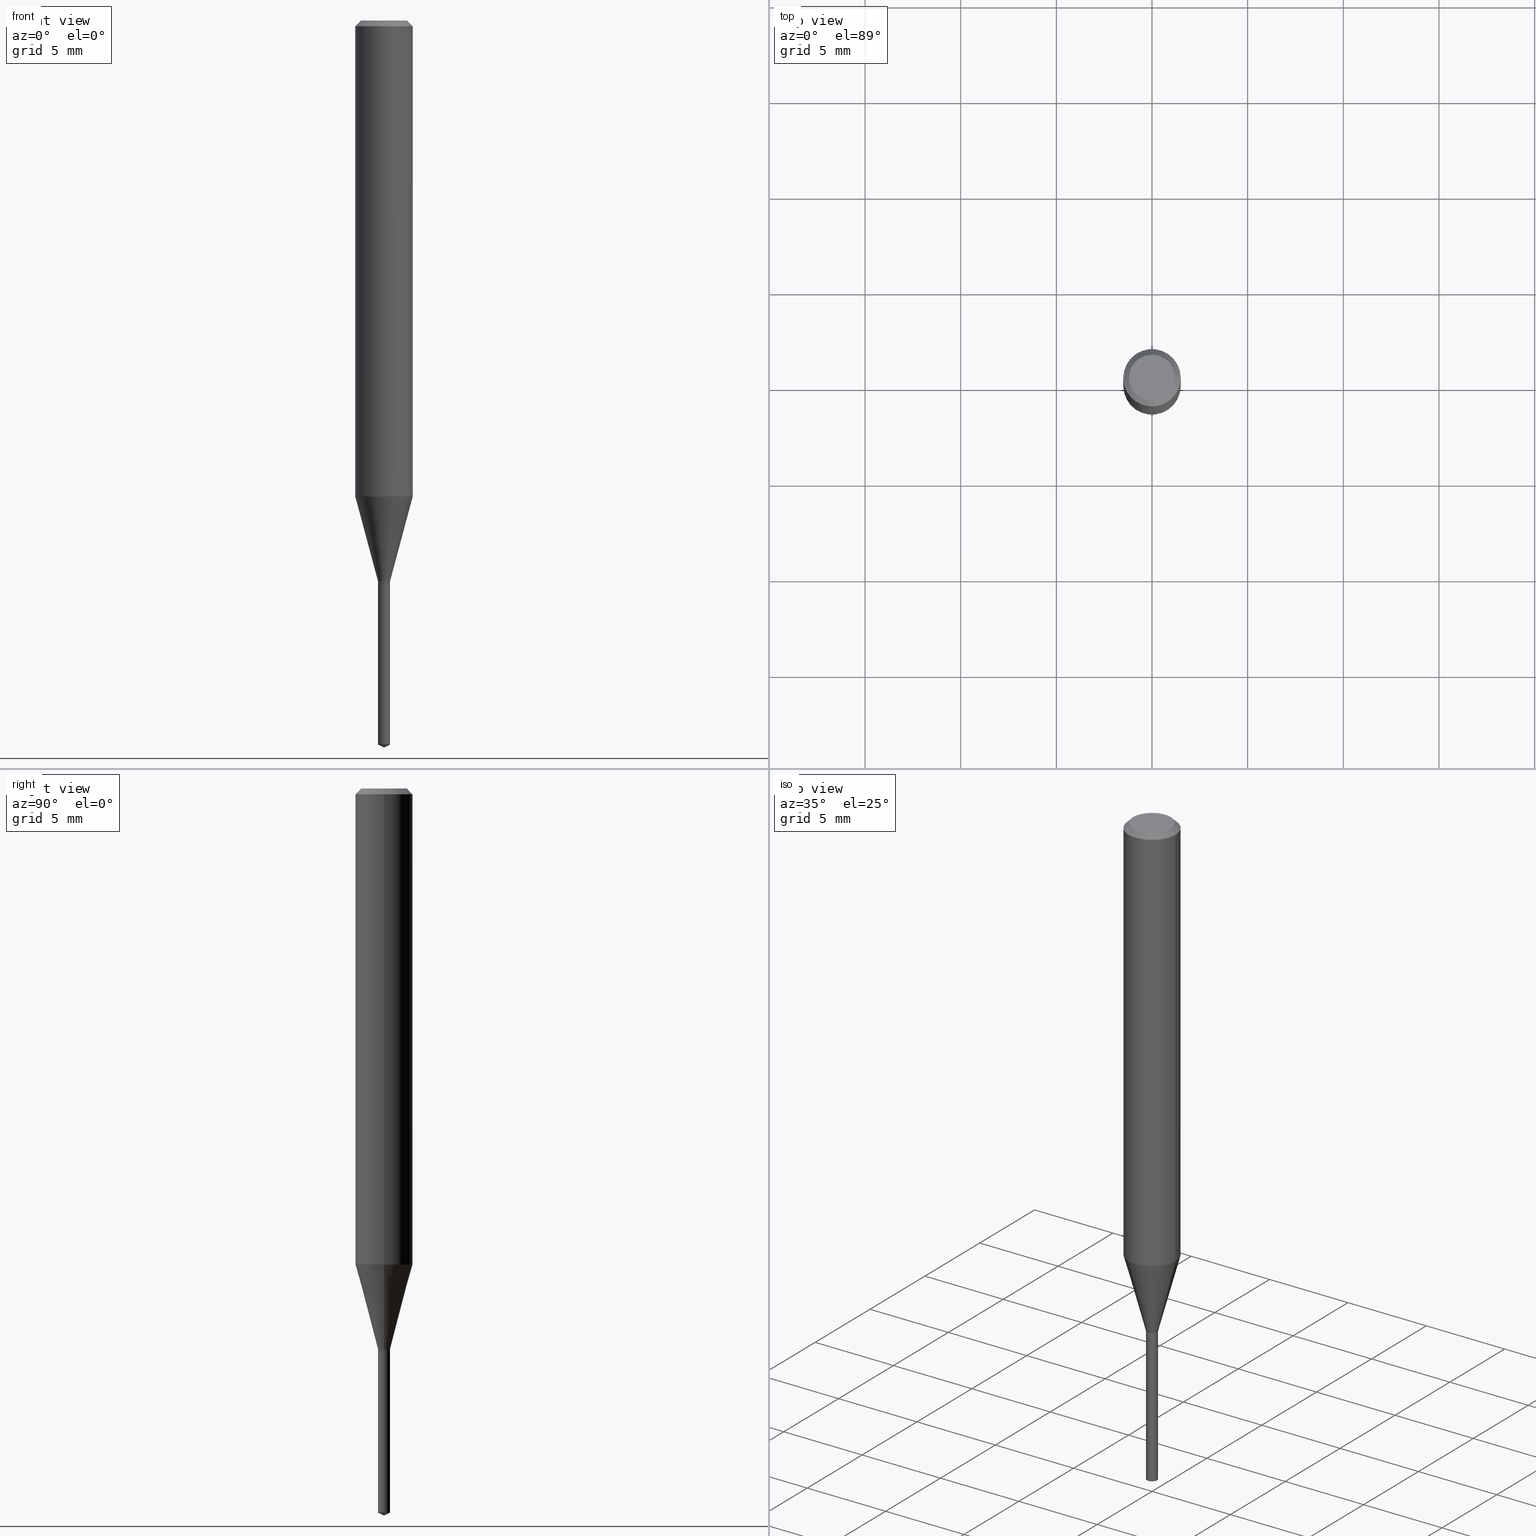
[diagram: canonical four-view strip — front | top / right | iso, engineering-drawing reading convention]
A machine part, canonical four-view strip (front | top / right | iso — engineering-drawing reading convention). The complete STEP part file that produces these views, byte-faithful:
ISO-10303-21;
HEADER;
FILE_DESCRIPTION (( 'STEP AP203' ),
    '1' );
FILE_NAME ('08287.STEP',
    '2024-04-24T14:06:48',
    ( '' ),
    ( '' ),
    'SwSTEP 2.0',
    'SolidWorks 2023',
    '' );
FILE_SCHEMA (( 'CONFIG_CONTROL_DESIGN' ));
ENDSEC;

DATA;
#1 = DIRECTION ( 'NONE',  ( 0.7071067811865454633, -7.319954787623248157E-15, -0.7071067811865495711 ) ) ;
#2 = DIRECTION ( 'NONE',  ( -2.445468806185136597E-29, 3.491481338843145583E-15, 1.000000000000000000 ) ) ;
#3 = ADVANCED_FACE ( 'NONE', ( #368 ), #137, .T. ) ;
#4 = DIRECTION ( 'NONE',  ( 1.000000000000000000, -6.982962677686265922E-15, 4.876176775795935793E-29 ) ) ;
#5 = CIRCLE ( 'NONE', #481, 0.01239999999999999956 ) ;
#6 = CARTESIAN_POINT ( 'NONE',  ( 8.810729923428890477E-17, 0.01239999999999595766, -1.157499999999999973 ) ) ;
#7 = DIRECTION ( 'NONE',  ( -2.445468806185136597E-29, 3.491481338843145583E-15, 1.000000000000000000 ) ) ;
#8 = DIRECTION ( 'NONE',  ( -6.982962677686265922E-15, -1.000000000000000000, 0.000000000000000000 ) ) ;
#9 = EDGE_CURVE ( 'NONE', #418, #61, #223, .T. ) ;
#10 = COORDINATED_UNIVERSAL_TIME_OFFSET ( 5, 0, .BEHIND. ) ;
#11 = CC_DESIGN_APPROVAL ( #303, ( #489 ) ) ;
#12 = CARTESIAN_POINT ( 'NONE',  ( 0.01239999999999999956, -4.126232646244828340E-15, -1.156999999999999806 ) ) ;
#13 = ORIENTED_EDGE ( 'NONE', *, *, #350, .T. ) ;
#14 = PERSON_AND_ORGANIZATION_ROLE ( 'design_supplier' ) ;
#15 = DIRECTION ( 'NONE',  ( -2.443412120811339220E-29, 3.494426629357685076E-15, 1.000000000000000000 ) ) ;
#16 = EDGE_CURVE ( 'NONE', #54, #363, #247, .T. ) ;
#17 = CARTESIAN_POINT ( 'NONE',  ( 2.829407408756202832E-29, -4.039643909041518608E-15, -1.156999999999999806 ) ) ;
#18 = EDGE_LOOP ( 'NONE', ( #204, #430, #426, #275 ) ) ;
#19 = MANIFOLD_SOLID_BREP ( 'Body-Move/Copy2[2]', #48 ) ;
#20 = EDGE_LOOP ( 'NONE', ( #187, #200, #219, #121 ) ) ;
#21 = EDGE_LOOP ( 'NONE', ( #119, #131, #27 ) ) ;
#22 =( NAMED_UNIT ( * ) SI_UNIT ( $, .STERADIAN. ) SOLID_ANGLE_UNIT ( ) );
#23 = CARTESIAN_POINT ( 'NONE',  ( 0.04724000000000000421, -3.852183633974369345E-16, -3.380025165621689721E-19 ) ) ;
#24 = EDGE_CURVE ( 'NONE', #212, #471, #254, .T. ) ;
#25 =( GEOMETRIC_REPRESENTATION_CONTEXT ( 3 ) GLOBAL_UNCERTAINTY_ASSIGNED_CONTEXT ( ( #337 ) ) GLOBAL_UNIT_ASSIGNED_CONTEXT ( ( #105, #329, #22 ) ) REPRESENTATION_CONTEXT ( 'NONE', 'WORKASPACE' ) );
#26 = APPROVAL_ROLE ( '' ) ;
#27 = ORIENTED_EDGE ( 'NONE', *, *, #396, .F. ) ;
#28 = VERTEX_POINT ( 'NONE', #102 ) ;
#29 = EDGE_CURVE ( 'NONE', #236, #83, #248, .T. ) ;
#30 = FACE_OUTER_BOUND ( 'NONE', #371, .T. ) ;
#31 = LOCAL_TIME ( 10, 6, 48.00000000000000000, #10 ) ;
#32 = CARTESIAN_POINT ( 'NONE',  ( 2.830630143159295633E-29, -4.041389649710940900E-15, -1.157499999999999973 ) ) ;
#33 = CONICAL_SURFACE ( 'NONE', #184, 0.01239999999999999956, 0.2617993877991500740 ) ;
#34 = APPROVAL_PERSON_ORGANIZATION ( #237, #454, #202 ) ;
#35 = ORIENTED_EDGE ( 'NONE', *, *, #252, .F. ) ;
#36 = DIRECTION ( 'NONE',  ( -2.445468806185136597E-29, 3.491481338843145583E-15, 1.000000000000000000 ) ) ;
#37 = DIRECTION ( 'NONE',  ( -6.982962677686265922E-15, -1.000000000000000000, 0.000000000000000000 ) ) ;
#38 = DIRECTION ( 'NONE',  ( 1.000000000000000000, -6.982962677686277755E-15, 0.000000000000000000 ) ) ;
#39 = VECTOR ( 'NONE', #349, 39.37007874015747433 ) ;
#40 = DIRECTION ( 'NONE',  ( -6.982962677686265922E-15, -1.000000000000000000, 0.000000000000000000 ) ) ;
#41 = CC_DESIGN_PERSON_AND_ORGANIZATION_ASSIGNMENT ( #477, #332, ( #294 ) ) ;
#42 = CYLINDRICAL_SURFACE ( 'NONE', #357, 0.05905000000000006077 ) ;
#43 = PERSON_AND_ORGANIZATION ( #87, #249 ) ;
#44 = DIRECTION ( 'NONE',  ( -6.982962677686265922E-15, -1.000000000000000000, 0.000000000000000000 ) ) ;
#45 = ORIENTED_EDGE ( 'NONE', *, *, #401, .F. ) ;
#46 = CIRCLE ( 'NONE', #101, 0.01239999999999999956 ) ;
#47 = APPROVAL_ROLE ( '' ) ;
#48 = CLOSED_SHELL ( 'NONE', ( #439, #73, #465, #258, #152, #415, #264, #344, #125, #207, #161, #3 ) ) ;
#49 = LINE ( 'NONE', #86, #380 ) ;
#50 = CC_DESIGN_DATE_AND_TIME_ASSIGNMENT ( #278, #393, ( #292 ) ) ;
#51 = DATE_AND_TIME ( #124, #347 ) ;
#52 = CARTESIAN_POINT ( 'NONE',  ( -9.253935810373158253E-28, 1.323512490431036956E-13, 37.87397874015748300 ) ) ;
#53 = ORIENTED_EDGE ( 'NONE', *, *, #472, .T. ) ;
#54 = VERTEX_POINT ( 'NONE', #488 ) ;
#55 = ORIENTED_EDGE ( 'NONE', *, *, #350, .F. ) ;
#56 = LINE ( 'NONE', #367, #98 ) ;
#57 = AXIS2_PLACEMENT_3D ( 'NONE', #305, #385, #38 ) ;
#58 = CARTESIAN_POINT ( 'NONE',  ( 0.05905000000000011628, -3.832947619625843003E-15, -0.9796998298269117278 ) ) ;
#59 = EDGE_CURVE ( 'NONE', #81, #220, #179, .T. ) ;
#60 = DIRECTION ( 'NONE',  ( 1.000000000000000000, 0.000000000000000000, 0.000000000000000000 ) ) ;
#61 = VERTEX_POINT ( 'NONE', #23 ) ;
#62 =( LENGTH_UNIT ( ) NAMED_UNIT ( * ) SI_UNIT ( $, .METRE. ) );
#63 = ORIENTED_EDGE ( 'NONE', *, *, #197, .F. ) ;
#64 = CC_DESIGN_APPROVAL ( #454, ( #447 ) ) ;
#65 = ORIENTED_EDGE ( 'NONE', *, *, #24, .T. ) ;
#66 = CIRCLE ( 'NONE', #158, 0.05905000000000011628 ) ;
#67 = DIRECTION ( 'NONE',  ( -2.445468806185136877E-29, 3.491481338843145188E-15, 1.000000000000000000 ) ) ;
#68 = DIRECTION ( 'NONE',  ( -2.445468806185136877E-29, 3.491481338843145188E-15, 1.000000000000000000 ) ) ;
#69 = ORIENTED_EDGE ( 'NONE', *, *, #386, .F. ) ;
#70 = CARTESIAN_POINT ( 'NONE',  ( 8.265746106709734507E-48, -1.180129479067563789E-33, -3.380025165646692144E-19 ) ) ;
#71 = CIRCLE ( 'NONE', #387, 0.04724000000000000421 ) ;
#72 = CC_DESIGN_SECURITY_CLASSIFICATION ( #292, ( #447 ) ) ;
#73 = ADVANCED_FACE ( 'NONE', ( #30 ), #437, .T. ) ;
#74 = DIRECTION ( 'NONE',  ( -2.438088387897960049E-29, 3.491481338843145188E-15, 1.000000000000000000 ) ) ;
#75 = CARTESIAN_POINT ( 'NONE',  ( 4.132873053354867254E-48, -5.900647395337818946E-34, -1.690012582823346072E-19 ) ) ;
#76 = DIRECTION ( 'NONE',  ( -2.445468806185136597E-29, 3.491481338843145583E-15, 1.000000000000000000 ) ) ;
#77 = EDGE_CURVE ( 'NONE', #480, #297, #291, .T. ) ;
#78 = CONICAL_SURFACE ( 'NONE', #365, 84.42940631927352513, 1.134464013796312232 ) ;
#79 = CARTESIAN_POINT ( 'NONE',  ( 0.01239999999999999956, -4.115059905960530718E-15, -1.153799999999999937 ) ) ;
#80 = ORIENTED_EDGE ( 'NONE', *, *, #111, .F. ) ;
#81 = VERTEX_POINT ( 'NONE', #58 ) ;
#82 = DIRECTION ( 'NONE',  ( -2.443412120811339220E-29, 3.494426629357685076E-15, 1.000000000000000000 ) ) ;
#83 = VERTEX_POINT ( 'NONE', #106 ) ;
#84 = ORIENTED_EDGE ( 'NONE', *, *, #396, .T. ) ;
#85 = CC_DESIGN_PERSON_AND_ORGANIZATION_ASSIGNMENT ( #469, #14, ( #447 ) ) ;
#86 = CARTESIAN_POINT ( 'NONE',  ( 3.655588873945844653E-29, -5.228011680182032039E-15, -1.496099999999999985 ) ) ;
#87 = PERSON ( 'UNSPECIFIED', 'UNSPECIFIED', 'UNSPECIFIED', ('UNSPECIFIED'), ('UNSPECIFIED'), ('UNSPECIFIED') ) ;
#88 = ORIENTED_EDGE ( 'NONE', *, *, #197, .T. ) ;
#89 = APPROVAL_STATUS ( 'not_yet_approved' ) ;
#90 = VECTOR ( 'NONE', #285, 39.37007874015747433 ) ;
#91 = CARTESIAN_POINT ( 'NONE',  ( 2.821581908576410135E-29, -4.028471168757220985E-15, -1.153799999999999937 ) ) ;
#92 = ORIENTED_EDGE ( 'NONE', *, *, #221, .T. ) ;
#93 = DATE_TIME_ROLE ( 'creation_date' ) ;
#94 = CARTESIAN_POINT ( 'NONE',  ( -0.01239999999999999956, 8.810729923425241995E-17, -6.099479511916082972E-31 ) ) ;
#95 = ORIENTED_EDGE ( 'NONE', *, *, #116, .F. ) ;
#96 = ADVANCED_BREP_SHAPE_REPRESENTATION ( '08287', ( #181, #19, #420 ), #25 ) ;
#97 = DIRECTION ( 'NONE',  ( 1.000000000000000000, -6.982962677686274599E-15, 0.000000000000000000 ) ) ;
#98 = VECTOR ( 'NONE', #253, 39.37007874015748143 ) ;
#99 = CIRCLE ( 'NONE', #118, 0.05905000000000011628 ) ;
#100 = FACE_OUTER_BOUND ( 'NONE', #167, .T. ) ;
#101 = AXIS2_PLACEMENT_3D ( 'NONE', #467, #15, #8 ) ;
#102 = CARTESIAN_POINT ( 'NONE',  ( -8.658873720328138277E-17, -0.01240000000000404147, -1.157499999999999973 ) ) ;
#103 = DIRECTION ( 'NONE',  ( 1.000000000000000000, -6.982962677686266711E-15, 4.876176775795935793E-29 ) ) ;
#104 = EDGE_LOOP ( 'NONE', ( #282, #209, #53, #211 ) ) ;
#105 =( CONVERSION_BASED_UNIT ( 'INCH', #250 ) LENGTH_UNIT ( ) NAMED_UNIT ( #442 ) );
#106 = CARTESIAN_POINT ( 'NONE',  ( -8.658873720327323531E-17, -0.01240000000000520200, -1.490317785038878018 ) ) ;
#107 = DIRECTION ( 'NONE',  ( -1.000000000000000000, 6.982962677686266711E-15, 0.000000000000000000 ) ) ;
#108 = CIRCLE ( 'NONE', #168, 0.05904999999999999832 ) ;
#109 = DIRECTION ( 'NONE',  ( -2.443412120811339220E-29, 3.494426629357685076E-15, 1.000000000000000000 ) ) ;
#110 = DIRECTION ( 'NONE',  ( 2.438088387897960049E-29, -3.491481338843145188E-15, -1.000000000000000000 ) ) ;
#111 = EDGE_CURVE ( 'NONE', #212, #81, #66, .T. ) ;
#112 = CYLINDRICAL_SURFACE ( 'NONE', #113, 0.01239999999999999956 ) ;
#113 = AXIS2_PLACEMENT_3D ( 'NONE', #414, #229, #301 ) ;
#114 = CARTESIAN_POINT ( 'NONE',  ( 2.888098660104662452E-31, -4.123439461173777798E-17, -0.01181000000000006697 ) ) ;
#115 = LINE ( 'NONE', #424, #199 ) ;
#116 = EDGE_CURVE ( 'NONE', #480, #212, #407, .T. ) ;
#117 = LINE ( 'NONE', #470, #175 ) ;
#118 = AXIS2_PLACEMENT_3D ( 'NONE', #316, #464, #391 ) ;
#119 = ORIENTED_EDGE ( 'NONE', *, *, #290, .F. ) ;
#120 = DIRECTION ( 'NONE',  ( 6.439704144417017731E-15, 0.9063077870366504918, 0.4226182617406979425 ) ) ;
#121 = ORIENTED_EDGE ( 'NONE', *, *, #221, .F. ) ;
#122 = CARTESIAN_POINT ( 'NONE',  ( 2.830630143159295633E-29, -4.041389649710940900E-15, -1.157499999999999973 ) ) ;
#123 = ORIENTED_EDGE ( 'NONE', *, *, #59, .F. ) ;
#124 = CALENDAR_DATE ( 2024, 24, 4 ) ;
#125 = ADVANCED_FACE ( 'NONE', ( #369 ), #348, .T. ) ;
#126 = CYLINDRICAL_SURFACE ( 'NONE', #139, 0.01239999999999999956 ) ;
#127 = ORIENTED_EDGE ( 'NONE', *, *, #228, .F. ) ;
#128 = CIRCLE ( 'NONE', #381, 0.01239999999999999956 ) ;
#129 = DATE_AND_TIME ( #319, #312 ) ;
#130 = DIRECTION ( 'NONE',  ( 1.000000000000000000, -6.982962677686266711E-15, 4.876176775795935793E-29 ) ) ;
#131 = ORIENTED_EDGE ( 'NONE', *, *, #338, .T. ) ;
#132 = DIRECTION ( 'NONE',  ( 1.000000000000000000, -6.982962677686274599E-15, 0.000000000000000000 ) ) ;
#133 = CARTESIAN_POINT ( 'NONE',  ( -0.01239999999999999956, -3.940363869522968799E-15, -1.153799999999999937 ) ) ;
#134 = ADVANCED_FACE ( 'NONE', ( #459 ), #153, .T. ) ;
#135 = DIRECTION ( 'NONE',  ( -0.7071067811865218156, 7.493145998870261075E-15, 0.7071067811865732189 ) ) ;
#136 = CIRCLE ( 'NONE', #457, 0.01190000000000000085 ) ;
#137 = CONICAL_SURFACE ( 'NONE', #217, 0.01190000000000000085, 0.7853981633974119747 ) ;
#138 = DIRECTION ( 'NONE',  ( -2.445468806185136597E-29, 3.491481338843145583E-15, 1.000000000000000000 ) ) ;
#139 = AXIS2_PLACEMENT_3D ( 'NONE', #122, #269, #40 ) ;
#140 = DIRECTION ( 'NONE',  ( -2.445468806185136597E-29, 3.491481338843145583E-15, 1.000000000000000000 ) ) ;
#141 = CC_DESIGN_PERSON_AND_ORGANIZATION_ASSIGNMENT ( #402, #364, ( #292 ) ) ;
#142 = DIRECTION ( 'NONE',  ( 1.000000000000000000, -6.982962677686274599E-15, 0.000000000000000000 ) ) ;
#143 = EDGE_LOOP ( 'NONE', ( #468, #218, #376, #92 ) ) ;
#144 = CARTESIAN_POINT ( 'NONE',  ( -0.01190000000000000085, -3.956835064155488824E-15, -1.157499999999999973 ) ) ;
#145 = CARTESIAN_POINT ( 'NONE',  ( 2.829407408756202832E-29, -4.039643909041518608E-15, -1.156999999999999806 ) ) ;
#146 = CONICAL_SURFACE ( 'NONE', #57, 0.01239999999999999956, 0.2617993877991500740 ) ;
#147 = DIRECTION ( 'NONE',  ( -1.000000000000000000, 6.982962677686266711E-15, 0.000000000000000000 ) ) ;
#148 = CARTESIAN_POINT ( 'NONE',  ( 0.01239999999999999956, -4.115059905960530718E-15, -1.153799999999999937 ) ) ;
#149 = AXIS2_PLACEMENT_3D ( 'NONE', #238, #323, #130 ) ;
#150 = DIRECTION ( 'NONE',  ( 1.000000000000000000, -6.982962677686266711E-15, 4.876185090822587894E-29 ) ) ;
#151 = AXIS2_PLACEMENT_3D ( 'NONE', #451, #450, #449 ) ;
#152 = ADVANCED_FACE ( 'NONE', ( #377 ), #112, .T. ) ;
#153 = CYLINDRICAL_SURFACE ( 'NONE', #192, 0.01239999999999999956 ) ;
#154 = DIRECTION ( 'NONE',  ( -2.445468806185136597E-29, 3.491481338843145583E-15, 1.000000000000000000 ) ) ;
#155 = PLANE ( 'NONE',  #265 ) ;
#156 = APPROVAL_PERSON_ORGANIZATION ( #315, #458, #47 ) ;
#157 = VERTEX_POINT ( 'NONE', #6 ) ;
#158 = AXIS2_PLACEMENT_3D ( 'NONE', #409, #251, #257 ) ;
#159 = LOCAL_TIME ( 10, 6, 48.00000000000000000, #434 ) ;
#160 = DIRECTION ( 'NONE',  ( -2.443412120811339220E-29, 3.494426629357685076E-15, 1.000000000000000000 ) ) ;
#161 = ADVANCED_FACE ( 'NONE', ( #388 ), #222, .F. ) ;
#162 = ORIENTED_EDGE ( 'NONE', *, *, #366, .F. ) ;
#163 = CARTESIAN_POINT ( 'NONE',  ( 0.01190000000000000085, -4.124486905575407626E-15, -1.157499999999999973 ) ) ;
#164 = VERTEX_POINT ( 'NONE', #422 ) ;
#165 = PERSON_AND_ORGANIZATION_ROLE ( 'creator' ) ;
#166 = LINE ( 'NONE', #231, #372 ) ;
#167 = EDGE_LOOP ( 'NONE', ( #462, #433, #69, #35 ) ) ;
#168 = AXIS2_PLACEMENT_3D ( 'NONE', #114, #36, #343 ) ;
#169 = EDGE_CURVE ( 'NONE', #297, #81, #185, .T. ) ;
#170 = ORIENTED_EDGE ( 'NONE', *, *, #331, .T. ) ;
#171 = EDGE_LOOP ( 'NONE', ( #313, #330, #226, #443 ) ) ;
#172 = ORIENTED_EDGE ( 'NONE', *, *, #423, .F. ) ;
#173 = ORIENTED_EDGE ( 'NONE', *, *, #423, .T. ) ;
#174 = EDGE_CURVE ( 'NONE', #61, #418, #71, .T. ) ;
#175 = VECTOR ( 'NONE', #120, 39.37007874015748854 ) ;
#176 = VECTOR ( 'NONE', #67, 39.37007874015748143 ) ;
#177 = COORDINATED_UNIVERSAL_TIME_OFFSET ( 5, 0, .BEHIND. ) ;
#178 = CONICAL_SURFACE ( 'NONE', #289, 84.42940631927352513, 1.134464013796312232 ) ;
#179 = LINE ( 'NONE', #404, #176 ) ;
#180 = CARTESIAN_POINT ( 'NONE',  ( 2.830630143159295633E-29, -4.041389649710940900E-15, -1.157499999999999973 ) ) ;
#181 = MANIFOLD_SOLID_BREP ( 'Body-Move/Copy2[1]', #341 ) ;
#182 = FACE_OUTER_BOUND ( 'NONE', #440, .T. ) ;
#183 = EDGE_CURVE ( 'NONE', #363, #325, #419, .T. ) ;
#184 = AXIS2_PLACEMENT_3D ( 'NONE', #340, #490, #300 ) ;
#185 = LINE ( 'NONE', #148, #39 ) ;
#186 = APPLICATION_CONTEXT ( 'configuration controlled 3d designs of mechanical parts and assemblies' ) ;
#187 = ORIENTED_EDGE ( 'NONE', *, *, #24, .F. ) ;
#188 = FACE_OUTER_BOUND ( 'NONE', #392, .T. ) ;
#189 = DIRECTION ( 'NONE',  ( -6.982962677686266711E-15, -1.000000000000000000, 3.520397390770487791E-15 ) ) ;
#190 = EDGE_CURVE ( 'NONE', #61, #220, #342, .T. ) ;
#191 = FACE_OUTER_BOUND ( 'NONE', #18, .T. ) ;
#192 = AXIS2_PLACEMENT_3D ( 'NONE', #453, #421, #37 ) ;
#193 = CARTESIAN_POINT ( 'NONE',  ( 2.830630143159295633E-29, -4.041389649710940900E-15, -1.157499999999999973 ) ) ;
#194 = DIRECTION ( 'NONE',  ( -2.445468806185136597E-29, 3.491481338843145583E-15, 1.000000000000000000 ) ) ;
#195 = PERSON_AND_ORGANIZATION ( #87, #249 ) ;
#196 = CARTESIAN_POINT ( 'NONE',  ( 2.830630143159295633E-29, -4.041389649710940900E-15, -1.157499999999999973 ) ) ;
#197 = EDGE_CURVE ( 'NONE', #325, #297, #455, .T. ) ;
#198 = VECTOR ( 'NONE', #242, 39.37007874015748143 ) ;
#199 = VECTOR ( 'NONE', #267, 39.37007874015748143 ) ;
#200 = ORIENTED_EDGE ( 'NONE', *, *, #111, .T. ) ;
#201 = APPROVAL_PERSON_ORGANIZATION ( #213, #303, #26 ) ;
#202 = APPROVAL_ROLE ( '' ) ;
#203 = CYLINDRICAL_SURFACE ( 'NONE', #149, 0.01239999999999999956 ) ;
#204 = ORIENTED_EDGE ( 'NONE', *, *, #401, .T. ) ;
#205 = FACE_OUTER_BOUND ( 'NONE', #104, .T. ) ;
#206 = EDGE_LOOP ( 'NONE', ( #13, #274 ) ) ;
#207 = ADVANCED_FACE ( 'NONE', ( #188 ), #384, .F. ) ;
#208 = COORDINATED_UNIVERSAL_TIME_OFFSET ( 5, 0, .BEHIND. ) ;
#209 = ORIENTED_EDGE ( 'NONE', *, *, #29, .T. ) ;
#210 = CARTESIAN_POINT ( 'NONE',  ( -0.05904999999999999832, 3.711095515056362547E-16, -0.01181000000000006697 ) ) ;
#211 = ORIENTED_EDGE ( 'NONE', *, *, #373, .F. ) ;
#212 = VERTEX_POINT ( 'NONE', #261 ) ;
#213 = PERSON_AND_ORGANIZATION ( #87, #249 ) ;
#214 = ORIENTED_EDGE ( 'NONE', *, *, #272, .T. ) ;
#215 = CC_DESIGN_DATE_AND_TIME_ASSIGNMENT ( #51, #93, ( #489 ) ) ;
#216 = AXIS2_PLACEMENT_3D ( 'NONE', #246, #479, #142 ) ;
#217 = AXIS2_PLACEMENT_3D ( 'NONE', #180, #140, #97 ) ;
#218 = ORIENTED_EDGE ( 'NONE', *, *, #9, .F. ) ;
#219 = ORIENTED_EDGE ( 'NONE', *, *, #59, .T. ) ;
#220 = VERTEX_POINT ( 'NONE', #383 ) ;
#221 = EDGE_CURVE ( 'NONE', #471, #220, #108, .T. ) ;
#222 = PLANE ( 'NONE',  #356 ) ;
#223 = CIRCLE ( 'NONE', #397, 0.04724000000000000421 ) ;
#224 = DIRECTION ( 'NONE',  ( -1.000000000000000000, 6.982962677686265922E-15, -4.876176775795935793E-29 ) ) ;
#225 = CC_DESIGN_APPROVAL ( #458, ( #292 ) ) ;
#226 = ORIENTED_EDGE ( 'NONE', *, *, #252, .T. ) ;
#227 = CARTESIAN_POINT ( 'NONE',  ( -9.253935810373158253E-28, 1.323512490431036956E-13, 37.87397874015748300 ) ) ;
#228 = EDGE_CURVE ( 'NONE', #220, #471, #452, .T. ) ;
#229 = DIRECTION ( 'NONE',  ( -2.445468806185136597E-29, 3.491481338843145583E-15, 1.000000000000000000 ) ) ;
#230 = CARTESIAN_POINT ( 'NONE',  ( 0.01239999999999999956, -8.658873720330970780E-17, 6.046459201986960460E-31 ) ) ;
#231 = CARTESIAN_POINT ( 'NONE',  ( 8.810729923428072034E-17, 0.01239999999999595766, -1.157499999999999973 ) ) ;
#232 = EDGE_LOOP ( 'NONE', ( #95, #399, #475, #80 ) ) ;
#233 = FACE_OUTER_BOUND ( 'NONE', #206, .T. ) ;
#234 = EDGE_LOOP ( 'NONE', ( #214, #65, #127, #123 ) ) ;
#235 = DIRECTION ( 'NONE',  ( -6.328713451373362279E-15, -0.9063077870366476052, 0.4226182617407043263 ) ) ;
#236 = VERTEX_POINT ( 'NONE', #266 ) ;
#237 = PERSON_AND_ORGANIZATION ( #87, #249 ) ;
#238 = CARTESIAN_POINT ( 'NONE',  ( 0.000000000000000000, 0.000000000000000000, 0.000000000000000000 ) ) ;
#239 = ADVANCED_FACE ( 'NONE', ( #182 ), #78, .T. ) ;
#240 = ORIENTED_EDGE ( 'NONE', *, *, #386, .T. ) ;
#241 = SHAPE_DEFINITION_REPRESENTATION ( #286, #96 ) ;
#242 = DIRECTION ( 'NONE',  ( -2.445468806185136877E-29, 3.491481338843145188E-15, 1.000000000000000000 ) ) ;
#243 = ORIENTED_EDGE ( 'NONE', *, *, #485, .F. ) ;
#244 = PRODUCT_RELATED_PRODUCT_CATEGORY ( 'detail', '', ( #294 ) ) ;
#245 = ORIENTED_EDGE ( 'NONE', *, *, #431, .F. ) ;
#246 = CARTESIAN_POINT ( 'NONE',  ( 2.830630143159295633E-29, -4.041389649710940900E-15, -1.157499999999999973 ) ) ;
#247 = LINE ( 'NONE', #144, #256 ) ;
#248 = CIRCLE ( 'NONE', #280, 0.01239999999999999956 ) ;
#249 = ORGANIZATION ( 'UNSPECIFIED', 'UNSPECIFIED', '' ) ;
#250 = LENGTH_MEASURE_WITH_UNIT ( LENGTH_MEASURE( 0.02539999999999999897 ), #62 );
#251 = DIRECTION ( 'NONE',  ( -2.445468806185136597E-29, 3.491481338843145583E-15, 1.000000000000000000 ) ) ;
#252 = EDGE_CURVE ( 'NONE', #361, #325, #115, .T. ) ;
#253 = DIRECTION ( 'NONE',  ( -2.443412120811338940E-29, 3.494426629357684682E-15, 1.000000000000000000 ) ) ;
#254 = LINE ( 'NONE', #288, #311 ) ;
#255 = ORIENTED_EDGE ( 'NONE', *, *, #338, .F. ) ;
#256 = VECTOR ( 'NONE', #135, 39.37007874015748143 ) ;
#257 = DIRECTION ( 'NONE',  ( 1.000000000000000000, -6.982962677686266711E-15, 0.000000000000000000 ) ) ;
#258 = ADVANCED_FACE ( 'NONE', ( #191 ), #146, .T. ) ;
#259 = CARTESIAN_POINT ( 'NONE',  ( 2.888098660104662452E-31, -4.123439461173777798E-17, -0.01181000000000006697 ) ) ;
#260 = DESIGN_CONTEXT ( 'detailed design', #262, 'design' ) ;
#261 = CARTESIAN_POINT ( 'NONE',  ( -0.05905000000000011628, -3.001028188042127801E-15, -0.9796998298269117278 ) ) ;
#262 = APPLICATION_CONTEXT ( 'configuration controlled 3d designs of mechanical parts and assemblies' ) ;
#263 = CIRCLE ( 'NONE', #417, 0.01239999999999999956 ) ;
#264 = ADVANCED_FACE ( 'NONE', ( #306 ), #33, .T. ) ;
#265 = AXIS2_PLACEMENT_3D ( 'NONE', #196, #360, #425 ) ;
#266 = CARTESIAN_POINT ( 'NONE',  ( 8.810729923428884314E-17, 0.01239999999999479192, -1.490317785038878018 ) ) ;
#267 = DIRECTION ( 'NONE',  ( 0.7071067811865218156, -2.468850131081987665E-15, 0.7071067811865732189 ) ) ;
#268 = DIRECTION ( 'NONE',  ( 2.445468806185136597E-29, -3.491481338843145583E-15, -1.000000000000000000 ) ) ;
#269 = DIRECTION ( 'NONE',  ( -2.443412120811339220E-29, 3.494426629357685076E-15, 1.000000000000000000 ) ) ;
#270 = AXIS2_PLACEMENT_3D ( 'NONE', #460, #2, #302 ) ;
#271 = ORIENTED_EDGE ( 'NONE', *, *, #77, .F. ) ;
#272 = EDGE_CURVE ( 'NONE', #81, #212, #99, .T. ) ;
#273 = CARTESIAN_POINT ( 'NONE',  ( 2.830630143159295633E-29, -4.041389649710940900E-15, -1.157499999999999973 ) ) ;
#274 = ORIENTED_EDGE ( 'NONE', *, *, #373, .T. ) ;
#275 = ORIENTED_EDGE ( 'NONE', *, *, #169, .F. ) ;
#276 = APPROVAL_DATE_TIME ( #486, #303 ) ;
#277 = FACE_OUTER_BOUND ( 'NONE', #20, .T. ) ;
#278 = DATE_AND_TIME ( #359, #31 ) ;
#279 = DIRECTION ( 'NONE',  ( 1.000000000000000000, -6.982962677686277755E-15, 0.000000000000000000 ) ) ;
#280 = AXIS2_PLACEMENT_3D ( 'NONE', #299, #328, #487 ) ;
#281 = CARTESIAN_POINT ( 'NONE',  ( -0.04724000000000000421, 3.504923541997677355E-16, -3.380025165670481712E-19 ) ) ;
#282 = ORIENTED_EDGE ( 'NONE', *, *, #331, .F. ) ;
#283 = APPROVAL_DATE_TIME ( #129, #454 ) ;
#284 = LINE ( 'NONE', #210, #394 ) ;
#285 = DIRECTION ( 'NONE',  ( -0.2588190451025213501, 5.211531920934551042E-15, 0.9659258262890682012 ) ) ;
#286 = PRODUCT_DEFINITION_SHAPE ( 'NONE', 'NONE',  #489 ) ;
#287 = CARTESIAN_POINT ( 'NONE',  ( 0.000000000000000000, 0.000000000000000000, 0.000000000000000000 ) ) ;
#288 = CARTESIAN_POINT ( 'NONE',  ( -0.05905000000000006077, 4.195754854663395916E-16, -2.904631170795524694E-30 ) ) ;
#289 = AXIS2_PLACEMENT_3D ( 'NONE', #52, #389, #362 ) ;
#290 = EDGE_CURVE ( 'NONE', #164, #83, #49, .T. ) ;
#291 = CIRCLE ( 'NONE', #151, 0.01239999999999999956 ) ;
#292 = SECURITY_CLASSIFICATION ( '', '', #476 ) ;
#293 = FACE_OUTER_BOUND ( 'NONE', #234, .T. ) ;
#294 = PRODUCT ( '08287', '08287', '', ( #327 ) ) ;
#295 = CARTESIAN_POINT ( 'NONE',  ( 2.888098660104662452E-31, -4.123439461173777798E-17, -0.01181000000000006697 ) ) ;
#296 = CARTESIAN_POINT ( 'NONE',  ( -0.01239999999999999956, -3.945950239665117611E-15, -1.153799999999999937 ) ) ;
#297 = VERTEX_POINT ( 'NONE', #79 ) ;
#298 = ADVANCED_FACE ( 'NONE', ( #233 ), #155, .F. ) ;
#299 = CARTESIAN_POINT ( 'NONE',  ( 3.643841153144872301E-29, -5.204396980474637563E-15, -1.490317785038878018 ) ) ;
#300 = DIRECTION ( 'NONE',  ( 1.000000000000000000, -6.982962677686277755E-15, 0.000000000000000000 ) ) ;
#301 = DIRECTION ( 'NONE',  ( 1.000000000000000000, -6.982962677686266711E-15, 4.876176775795935793E-29 ) ) ;
#302 = DIRECTION ( 'NONE',  ( 1.000000000000000000, -6.982962677686266711E-15, 0.000000000000000000 ) ) ;
#303 = APPROVAL ( #370, 'UNSPECIFIED' ) ;
#304 = LOCAL_TIME ( 10, 6, 48.00000000000000000, #177 ) ;
#305 = CARTESIAN_POINT ( 'NONE',  ( 2.821581908576410135E-29, -4.028471168757220985E-15, -1.153799999999999937 ) ) ;
#306 = FACE_OUTER_BOUND ( 'NONE', #232, .T. ) ;
#307 = FACE_OUTER_BOUND ( 'NONE', #21, .T. ) ;
#308 = CC_DESIGN_PERSON_AND_ORGANIZATION_ASSIGNMENT ( #43, #165, ( #489 ) ) ;
#309 = CIRCLE ( 'NONE', #412, 0.01239999999999999956 ) ;
#310 = DIRECTION ( 'NONE',  ( 1.000000000000000000, -6.982962677686266711E-15, 4.876176775795935793E-29 ) ) ;
#311 = VECTOR ( 'NONE', #445, 39.37007874015748143 ) ;
#312 = LOCAL_TIME ( 10, 6, 48.00000000000000000, #208 ) ;
#313 = ORIENTED_EDGE ( 'NONE', *, *, #16, .F. ) ;
#314 = ORIENTED_EDGE ( 'NONE', *, *, #9, .T. ) ;
#315 = PERSON_AND_ORGANIZATION ( #87, #249 ) ;
#316 = CARTESIAN_POINT ( 'NONE',  ( 2.395825373266599197E-29, -3.420603673508467294E-15, -0.9796998298269117278 ) ) ;
#317 = EDGE_LOOP ( 'NONE', ( #84, #170, #55, #379 ) ) ;
#318 = ADVANCED_FACE ( 'NONE', ( #307 ), #178, .T. ) ;
#319 = CALENDAR_DATE ( 2024, 24, 4 ) ;
#320 = CARTESIAN_POINT ( 'NONE',  ( 3.643841153144872301E-29, -5.204396980474637563E-15, -1.490317785038878018 ) ) ;
#321 = ORIENTED_EDGE ( 'NONE', *, *, #174, .F. ) ;
#322 = DATE_AND_TIME ( #326, #159 ) ;
#323 = DIRECTION ( 'NONE',  ( -2.445468806185136597E-29, 3.491481338843145583E-15, 1.000000000000000000 ) ) ;
#324 = VECTOR ( 'NONE', #68, 39.37007874015748143 ) ;
#325 = VERTEX_POINT ( 'NONE', #12 ) ;
#326 = CALENDAR_DATE ( 2024, 24, 4 ) ;
#327 = MECHANICAL_CONTEXT ( 'NONE', #186, 'mechanical' ) ;
#328 = DIRECTION ( 'NONE',  ( -2.443412120811339220E-29, 3.494426629357685076E-15, 1.000000000000000000 ) ) ;
#329 =( NAMED_UNIT ( * ) PLANE_ANGLE_UNIT ( ) SI_UNIT ( $, .RADIAN. ) );
#330 = ORIENTED_EDGE ( 'NONE', *, *, #431, .T. ) ;
#331 = EDGE_CURVE ( 'NONE', #236, #157, #166, .T. ) ;
#332 = PERSON_AND_ORGANIZATION_ROLE ( 'design_owner' ) ;
#333 = ORIENTED_EDGE ( 'NONE', *, *, #190, .T. ) ;
#334 = AXIS2_PLACEMENT_3D ( 'NONE', #193, #7, #132 ) ;
#335 = CALENDAR_DATE ( 2024, 24, 4 ) ;
#336 = ORIENTED_EDGE ( 'NONE', *, *, #290, .T. ) ;
#337 = UNCERTAINTY_MEASURE_WITH_UNIT (LENGTH_MEASURE( 1.000000000000000082E-05 ), #105, 'distance_accuracy_value', 'NONE');
#338 = EDGE_CURVE ( 'NONE', #164, #236, #117, .T. ) ;
#339 = DIRECTION ( 'NONE',  ( 1.000000000000000000, -6.982962677686266711E-15, 4.876185090822587894E-29 ) ) ;
#340 = CARTESIAN_POINT ( 'NONE',  ( 2.821581908576410135E-29, -4.028471168757220985E-15, -1.153799999999999937 ) ) ;
#341 = CLOSED_SHELL ( 'NONE', ( #134, #318, #239, #382, #298 ) ) ;
#342 = LINE ( 'NONE', #416, #374 ) ;
#343 = DIRECTION ( 'NONE',  ( 1.000000000000000000, -6.982962677686266711E-15, 0.000000000000000000 ) ) ;
#344 = ADVANCED_FACE ( 'NONE', ( #277 ), #42, .T. ) ;
#345 = DIRECTION ( 'NONE',  ( -2.445468806185136597E-29, 3.491481338843145583E-15, 1.000000000000000000 ) ) ;
#346 = ORIENTED_EDGE ( 'NONE', *, *, #228, .T. ) ;
#347 = LOCAL_TIME ( 10, 6, 48.00000000000000000, #390 ) ;
#348 = CONICAL_SURFACE ( 'NONE', #405, 0.05904999999999999832, 0.7853981633974453924 ) ;
#349 = DIRECTION ( 'NONE',  ( 0.2588190451025213501, 1.565188264969621968E-15, 0.9659258262890682012 ) ) ;
#350 = EDGE_CURVE ( 'NONE', #28, #157, #46, .T. ) ;
#351 = DIRECTION ( 'NONE',  ( 1.000000000000000000, -6.982962677686274599E-15, 0.000000000000000000 ) ) ;
#352 = APPROVAL_DATE_TIME ( #322, #458 ) ;
#353 = DIRECTION ( 'NONE',  ( -2.445468806185136597E-29, 3.491481338843145583E-15, 1.000000000000000000 ) ) ;
#354 = PERSON_AND_ORGANIZATION_ROLE ( 'creator' ) ;
#355 = DIRECTION ( 'NONE',  ( -2.445468806185136597E-29, 3.491481338843145583E-15, 1.000000000000000000 ) ) ;
#356 = AXIS2_PLACEMENT_3D ( 'NONE', #32, #74, #4 ) ;
#357 = AXIS2_PLACEMENT_3D ( 'NONE', #398, #353, #310 ) ;
#358 = ORIENTED_EDGE ( 'NONE', *, *, #29, .F. ) ;
#359 = CALENDAR_DATE ( 2024, 24, 4 ) ;
#360 = DIRECTION ( 'NONE',  ( 2.443412120811339220E-29, -3.494426629357684682E-15, -1.000000000000000000 ) ) ;
#361 = VERTEX_POINT ( 'NONE', #163 ) ;
#362 = DIRECTION ( 'NONE',  ( -6.982962677686266711E-15, -1.000000000000000000, 3.520397390770487791E-15 ) ) ;
#363 = VERTEX_POINT ( 'NONE', #436 ) ;
#364 = PERSON_AND_ORGANIZATION_ROLE ( 'classification_officer' ) ;
#365 = AXIS2_PLACEMENT_3D ( 'NONE', #227, #109, #189 ) ;
#366 = EDGE_CURVE ( 'NONE', #361, #54, #136, .T. ) ;
#367 = CARTESIAN_POINT ( 'NONE',  ( -8.658873720328138277E-17, -0.01240000000000404147, -1.157499999999999973 ) ) ;
#368 = FACE_OUTER_BOUND ( 'NONE', #171, .T. ) ;
#369 = FACE_OUTER_BOUND ( 'NONE', #143, .T. ) ;
#370 = APPROVAL_STATUS ( 'not_yet_approved' ) ;
#371 = EDGE_LOOP ( 'NONE', ( #321, #333, #346, #243 ) ) ;
#372 = VECTOR ( 'NONE', #461, 39.37007874015748143 ) ;
#373 = EDGE_CURVE ( 'NONE', #157, #28, #128, .T. ) ;
#374 = VECTOR ( 'NONE', #1, 39.37007874015748143 ) ;
#375 = ORIENTED_EDGE ( 'NONE', *, *, #174, .T. ) ;
#376 = ORIENTED_EDGE ( 'NONE', *, *, #485, .T. ) ;
#377 = FACE_OUTER_BOUND ( 'NONE', #466, .T. ) ;
#378 = CONICAL_SURFACE ( 'NONE', #216, 0.01190000000000000085, 0.7853981633974119747 ) ;
#379 = ORIENTED_EDGE ( 'NONE', *, *, #472, .F. ) ;
#380 = VECTOR ( 'NONE', #235, 39.37007874015748854 ) ;
#381 = AXIS2_PLACEMENT_3D ( 'NONE', #273, #160, #429 ) ;
#382 = ADVANCED_FACE ( 'NONE', ( #205 ), #126, .T. ) ;
#383 = CARTESIAN_POINT ( 'NONE',  ( 0.05904999999999999832, -4.535783407291118600E-16, -0.01181000000000006697 ) ) ;
#384 = PLANE ( 'NONE',  #446 ) ;
#385 = DIRECTION ( 'NONE',  ( -2.445468806185136597E-29, 3.491481338843145583E-15, 1.000000000000000000 ) ) ;
#386 = EDGE_CURVE ( 'NONE', #325, #363, #5, .T. ) ;
#387 = AXIS2_PLACEMENT_3D ( 'NONE', #70, #345, #150 ) ;
#388 = FACE_OUTER_BOUND ( 'NONE', #400, .T. ) ;
#389 = DIRECTION ( 'NONE',  ( -2.443412120811339220E-29, 3.494426629357685076E-15, 1.000000000000000000 ) ) ;
#390 = COORDINATED_UNIVERSAL_TIME_OFFSET ( 5, 0, .BEHIND. ) ;
#391 = DIRECTION ( 'NONE',  ( 1.000000000000000000, -6.982962677686266711E-15, 0.000000000000000000 ) ) ;
#392 = EDGE_LOOP ( 'NONE', ( #314, #375 ) ) ;
#393 = DATE_TIME_ROLE ( 'classification_date' ) ;
#394 = VECTOR ( 'NONE', #441, 39.37007874015748143 ) ;
#395 = FACE_OUTER_BOUND ( 'NONE', #413, .T. ) ;
#396 = EDGE_CURVE ( 'NONE', #83, #236, #309, .T. ) ;
#397 = AXIS2_PLACEMENT_3D ( 'NONE', #483, #411, #339 ) ;
#398 = CARTESIAN_POINT ( 'NONE',  ( 0.000000000000000000, 0.000000000000000000, 0.000000000000000000 ) ) ;
#399 = ORIENTED_EDGE ( 'NONE', *, *, #77, .T. ) ;
#400 = EDGE_LOOP ( 'NONE', ( #162, #245 ) ) ;
#401 = EDGE_CURVE ( 'NONE', #297, #480, #263, .T. ) ;
#402 = PERSON_AND_ORGANIZATION ( #87, #249 ) ;
#403 = CARTESIAN_POINT ( 'NONE',  ( 0.000000000000000000, 0.000000000000000000, 0.000000000000000000 ) ) ;
#404 = CARTESIAN_POINT ( 'NONE',  ( 0.05905000000000006077, -4.123439461173744764E-16, 2.879382386107503023E-30 ) ) ;
#405 = AXIS2_PLACEMENT_3D ( 'NONE', #259, #268, #147 ) ;
#406 = APPLICATION_PROTOCOL_DEFINITION ( 'international standard', 'config_control_design', 1994, #186 ) ;
#407 = LINE ( 'NONE', #133, #90 ) ;
#408 = CC_DESIGN_PERSON_AND_ORGANIZATION_ASSIGNMENT ( #195, #354, ( #447 ) ) ;
#409 = CARTESIAN_POINT ( 'NONE',  ( 2.395825373266599197E-29, -3.420603673508467294E-15, -0.9796998298269117278 ) ) ;
#410 = CARTESIAN_POINT ( 'NONE',  ( -0.05904999999999999832, -1.311343548593762230E-15, -0.01181000000000006697 ) ) ;
#411 = DIRECTION ( 'NONE',  ( -2.445468806185136597E-29, 3.491481338843145583E-15, 1.000000000000000000 ) ) ;
#412 = AXIS2_PLACEMENT_3D ( 'NONE', #320, #82, #44 ) ;
#413 = EDGE_LOOP ( 'NONE', ( #172, #427, #88, #271 ) ) ;
#414 = CARTESIAN_POINT ( 'NONE',  ( 0.000000000000000000, 0.000000000000000000, 0.000000000000000000 ) ) ;
#415 = ADVANCED_FACE ( 'NONE', ( #395 ), #203, .T. ) ;
#416 = CARTESIAN_POINT ( 'NONE',  ( 0.05904999999999999832, -4.463468013801466955E-16, -0.01181000000000006697 ) ) ;
#417 = AXIS2_PLACEMENT_3D ( 'NONE', #91, #355, #432 ) ;
#418 = VERTEX_POINT ( 'NONE', #281 ) ;
#419 = CIRCLE ( 'NONE', #484, 0.01239999999999999956 ) ;
#420 = AXIS2_PLACEMENT_3D ( 'NONE', #287, #444, #60 ) ;
#421 = DIRECTION ( 'NONE',  ( -2.443412120811339220E-29, 3.494426629357685076E-15, 1.000000000000000000 ) ) ;
#422 = CARTESIAN_POINT ( 'NONE',  ( 3.655588873945844092E-29, -5.228011680182032039E-15, -1.496099999999999985 ) ) ;
#423 = EDGE_CURVE ( 'NONE', #363, #480, #438, .T. ) ;
#424 = CARTESIAN_POINT ( 'NONE',  ( 0.01190000000000000085, -4.124486905575407626E-15, -1.157499999999999973 ) ) ;
#425 = DIRECTION ( 'NONE',  ( 6.982962677686265922E-15, 1.000000000000000000, -3.494426629357684682E-15 ) ) ;
#426 = ORIENTED_EDGE ( 'NONE', *, *, #272, .F. ) ;
#427 = ORIENTED_EDGE ( 'NONE', *, *, #183, .T. ) ;
#428 = APPROVAL_STATUS ( 'not_yet_approved' ) ;
#429 = DIRECTION ( 'NONE',  ( -6.982962677686265922E-15, -1.000000000000000000, 0.000000000000000000 ) ) ;
#430 = ORIENTED_EDGE ( 'NONE', *, *, #116, .T. ) ;
#431 = EDGE_CURVE ( 'NONE', #54, #361, #435, .T. ) ;
#432 = DIRECTION ( 'NONE',  ( 1.000000000000000000, -6.982962677686277755E-15, 0.000000000000000000 ) ) ;
#433 = ORIENTED_EDGE ( 'NONE', *, *, #16, .T. ) ;
#434 = COORDINATED_UNIVERSAL_TIME_OFFSET ( 5, 0, .BEHIND. ) ;
#435 = CIRCLE ( 'NONE', #334, 0.01190000000000000085 ) ;
#436 = CARTESIAN_POINT ( 'NONE',  ( -0.01239999999999999956, -3.945950239665117611E-15, -1.156999999999999806 ) ) ;
#437 = CONICAL_SURFACE ( 'NONE', #474, 0.05904999999999999832, 0.7853981633974453924 ) ;
#438 = LINE ( 'NONE', #94, #198 ) ;
#439 = ADVANCED_FACE ( 'NONE', ( #100 ), #378, .T. ) ;
#440 = EDGE_LOOP ( 'NONE', ( #255, #336, #358 ) ) ;
#441 = DIRECTION ( 'NONE',  ( -0.7071067811865454633, 2.468850131082235367E-15, -0.7071067811865495711 ) ) ;
#442 = DIMENSIONAL_EXPONENTS ( 1.000000000000000000, 0.000000000000000000, 0.000000000000000000, 0.000000000000000000, 0.000000000000000000, 0.000000000000000000, 0.000000000000000000 ) ;
#443 = ORIENTED_EDGE ( 'NONE', *, *, #183, .F. ) ;
#444 = DIRECTION ( 'NONE',  ( 0.000000000000000000, 0.000000000000000000, 1.000000000000000000 ) ) ;
#445 = DIRECTION ( 'NONE',  ( -2.445468806185136877E-29, 3.491481338843145188E-15, 1.000000000000000000 ) ) ;
#446 = AXIS2_PLACEMENT_3D ( 'NONE', #75, #110, #224 ) ;
#447 = PRODUCT_DEFINITION_FORMATION_WITH_SPECIFIED_SOURCE ( 'ANY', '', #294, .NOT_KNOWN. ) ;
#448 = CYLINDRICAL_SURFACE ( 'NONE', #463, 0.05905000000000006077 ) ;
#449 = DIRECTION ( 'NONE',  ( 1.000000000000000000, -6.982962677686277755E-15, 0.000000000000000000 ) ) ;
#450 = DIRECTION ( 'NONE',  ( -2.445468806185136597E-29, 3.491481338843145583E-15, 1.000000000000000000 ) ) ;
#451 = CARTESIAN_POINT ( 'NONE',  ( 2.821581908576410135E-29, -4.028471168757220985E-15, -1.153799999999999937 ) ) ;
#452 = CIRCLE ( 'NONE', #270, 0.05904999999999999832 ) ;
#453 = CARTESIAN_POINT ( 'NONE',  ( 2.830630143159295633E-29, -4.041389649710940900E-15, -1.157499999999999973 ) ) ;
#454 = APPROVAL ( #428, 'UNSPECIFIED' ) ;
#455 = LINE ( 'NONE', #230, #324 ) ;
#456 = DIRECTION ( 'NONE',  ( 1.000000000000000000, -6.982962677686277755E-15, 0.000000000000000000 ) ) ;
#457 = AXIS2_PLACEMENT_3D ( 'NONE', #473, #194, #351 ) ;
#458 = APPROVAL ( #89, 'UNSPECIFIED' ) ;
#459 = FACE_OUTER_BOUND ( 'NONE', #317, .T. ) ;
#460 = CARTESIAN_POINT ( 'NONE',  ( 2.888098660104662452E-31, -4.123439461173777798E-17, -0.01181000000000006697 ) ) ;
#461 = DIRECTION ( 'NONE',  ( -2.443412120811338940E-29, 3.494426629357684682E-15, 1.000000000000000000 ) ) ;
#462 = ORIENTED_EDGE ( 'NONE', *, *, #366, .T. ) ;
#463 = AXIS2_PLACEMENT_3D ( 'NONE', #403, #138, #103 ) ;
#464 = DIRECTION ( 'NONE',  ( -2.445468806185136597E-29, 3.491481338843145583E-15, 1.000000000000000000 ) ) ;
#465 = ADVANCED_FACE ( 'NONE', ( #293 ), #448, .T. ) ;
#466 = EDGE_LOOP ( 'NONE', ( #240, #173, #45, #63 ) ) ;
#467 = CARTESIAN_POINT ( 'NONE',  ( 2.830630143159295633E-29, -4.041389649710940900E-15, -1.157499999999999973 ) ) ;
#468 = ORIENTED_EDGE ( 'NONE', *, *, #190, .F. ) ;
#469 = PERSON_AND_ORGANIZATION ( #87, #249 ) ;
#470 = CARTESIAN_POINT ( 'NONE',  ( 3.660391850923644026E-29, -5.221193332640872943E-15, -1.496099999999999985 ) ) ;
#471 = VERTEX_POINT ( 'NONE', #410 ) ;
#472 = EDGE_CURVE ( 'NONE', #83, #28, #56, .T. ) ;
#473 = CARTESIAN_POINT ( 'NONE',  ( 2.830630143159295633E-29, -4.041389649710940900E-15, -1.157499999999999973 ) ) ;
#474 = AXIS2_PLACEMENT_3D ( 'NONE', #295, #478, #107 ) ;
#475 = ORIENTED_EDGE ( 'NONE', *, *, #169, .T. ) ;
#476 = SECURITY_CLASSIFICATION_LEVEL ( 'unclassified' ) ;
#477 = PERSON_AND_ORGANIZATION ( #87, #249 ) ;
#478 = DIRECTION ( 'NONE',  ( 2.445468806185136597E-29, -3.491481338843145583E-15, -1.000000000000000000 ) ) ;
#479 = DIRECTION ( 'NONE',  ( -2.445468806185136597E-29, 3.491481338843145583E-15, 1.000000000000000000 ) ) ;
#480 = VERTEX_POINT ( 'NONE', #296 ) ;
#481 = AXIS2_PLACEMENT_3D ( 'NONE', #17, #154, #279 ) ;
#482 = APPLICATION_PROTOCOL_DEFINITION ( 'international standard', 'config_control_design', 1994, #262 ) ;
#483 = CARTESIAN_POINT ( 'NONE',  ( 8.265746106709734507E-48, -1.180129479067563789E-33, -3.380025165646692144E-19 ) ) ;
#484 = AXIS2_PLACEMENT_3D ( 'NONE', #145, #76, #456 ) ;
#485 = EDGE_CURVE ( 'NONE', #418, #471, #284, .T. ) ;
#486 = DATE_AND_TIME ( #335, #304 ) ;
#487 = DIRECTION ( 'NONE',  ( -6.982962677686265922E-15, -1.000000000000000000, 0.000000000000000000 ) ) ;
#488 = CARTESIAN_POINT ( 'NONE',  ( -0.01190000000000000085, -3.954185836981377623E-15, -1.157499999999999973 ) ) ;
#489 = PRODUCT_DEFINITION ( 'UNKNOWN', '', #447, #260 ) ;
#490 = DIRECTION ( 'NONE',  ( -2.445468806185136597E-29, 3.491481338843145583E-15, 1.000000000000000000 ) ) ;
ENDSEC;
END-ISO-10303-21;
